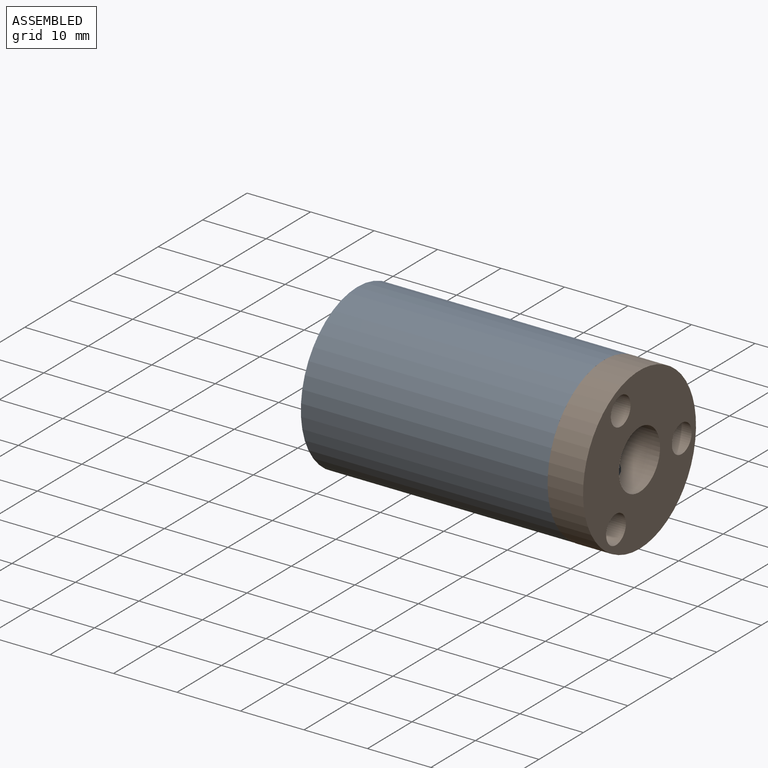
[diagram: assembled view]
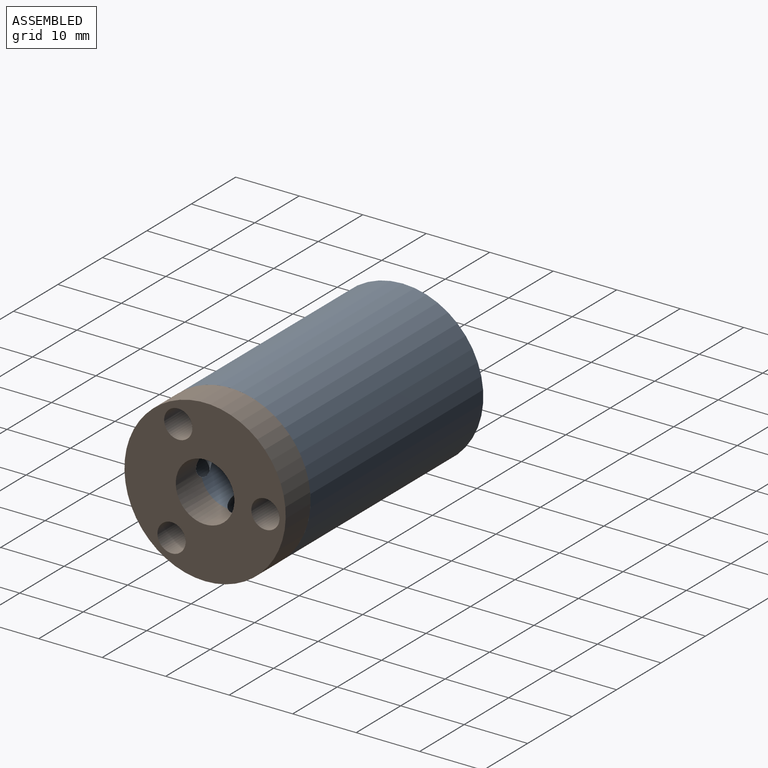
[diagram: assembled view, second angle]
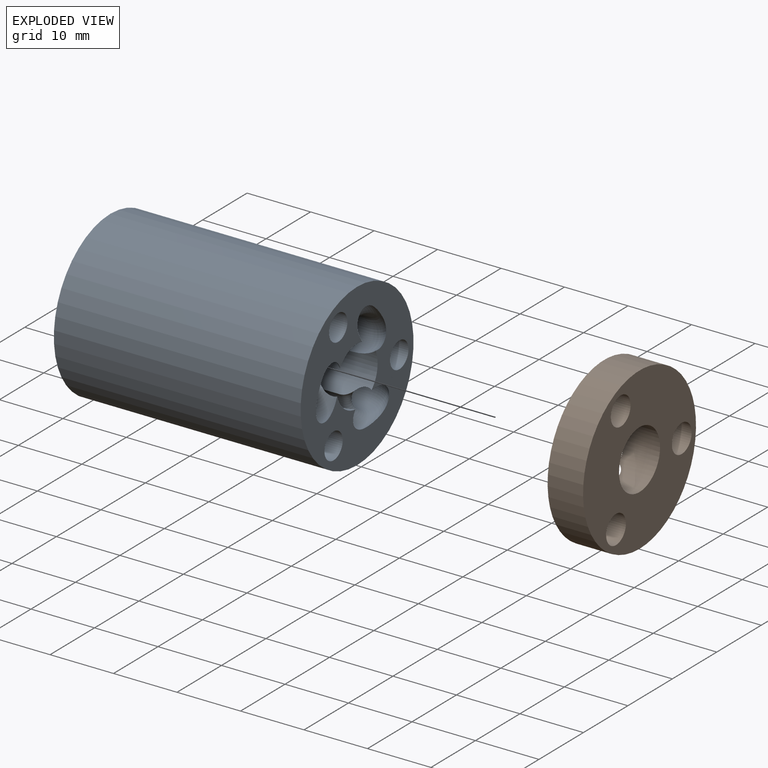
[diagram: exploded view]
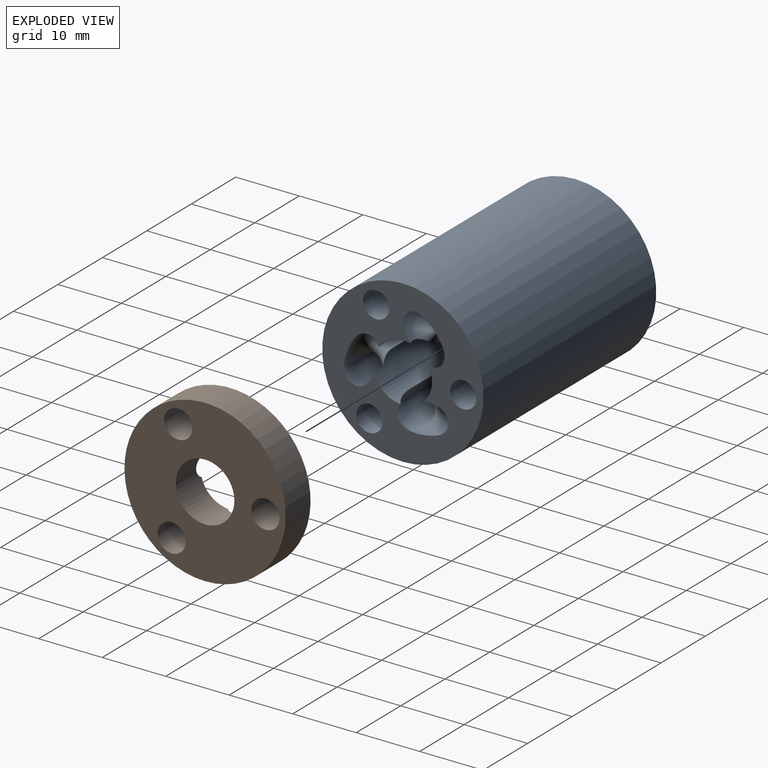
[diagram: exploded view, second angle]
ASSEMBLY  parts=2 mates=2
PART A: 26 faces, bbox 41.1x25.5x25.5 mm
  f0: cylinder r=2.06mm len=19.81mm, axis (1,0,0), area 256.1mm2, adj f15,f25
  f1: cylinder r=2.06mm len=19.81mm, axis (1,0,0), area 256.1mm2, adj f15,f24
  f2: cylinder r=2.06mm len=19.81mm, axis (1,0,0), area 256.1mm2, adj f15,f23
  f3: cylinder r=2.48mm len=25.4mm, axis (-1,0,0), area 300.1mm2, adj f5,f13,f18,f19
  f4: cylinder r=2.48mm len=25.4mm, axis (-1,0,0), area 300.1mm2, adj f5,f14,f20,f21
  f5: cylinder r=4.62mm len=38.86mm, axis (-1,0,0), area 750.4mm2, adj f3,f4,f6,f10,f12,f13,f14,f15
  f6: cylinder r=4.62mm len=3.94mm, axis (-1,0,0), area 1.6mm2, adj f5,f15,f20
  f7: cylinder r=2.48mm len=25.4mm, axis (-1,0,0), area 395.2mm2, adj f13,f19
  f8: cylinder r=2.48mm len=25.4mm, axis (-1,0,0), area 395.2mm2, adj f14,f21
  f9: cylinder r=2.48mm len=25.4mm, axis (-1,0,0), area 395.2mm2, adj f12,f16
  f10: cylinder r=2.48mm len=25.4mm, axis (-1,0,0), area 300.1mm2, adj f5,f12,f16,f17
  f11: cylinder r=12.7mm len=38.86mm, axis (-1,0,0), area 3101mm2, adj f15,f22
  f12: torus R=3.19mm, axis (0,0.14,-0.99), area 134.7mm2, adj f5,f9,f10
  f13: torus R=3.19mm, axis (0,-0.93,0.37), area 134.7mm2, adj f3,f5,f7
  f14: torus R=3.19mm, axis (0,0.79,0.62), area 134.7mm2, adj f4,f5,f8
  f15: plane 25.46x25.46mm, normal (1,0,0), area 311.2mm2, adj f0,f1,f2,f5,f6,f11,f16,f18
  f16: torus R=3.19mm, axis (0,0.14,-0.99), area 94.4mm2, adj f5,f9,f10,f15,f17
  f17: torus R=3.19mm, axis (0,0.14,-0.99), area 1.9mm2, adj f5,f10,f16
  f18: torus R=3.19mm, axis (0,-0.93,0.37), area 5mm2, adj f3,f5,f15,f19
  f19: torus R=3.19mm, axis (0,-0.93,0.37), area 91.4mm2, adj f3,f5,f7,f15,f18
  f20: torus R=3.19mm, axis (0,0.79,0.62), area 1.9mm2, adj f4,f6,f21
  f21: torus R=3.19mm, axis (0,0.79,0.62), area 94.4mm2, adj f4,f5,f8,f15,f20
  f22: plane 25.4x25.4mm, normal (-1,0,0), area 439.7mm2, adj f5,f11
  f23: plane 4.12x4.11mm, normal (1,0,0), area 13.3mm2, adj f2
  f24: plane 4.12x4.11mm, normal (1,0,0), area 13.3mm2, adj f1
  f25: plane 4.11x4.11mm, normal (1,0,0), area 13.3mm2, adj f0
PART B: 10 faces, bbox 7.3x25.4x25.4 mm
  f0: cylinder r=4.62mm len=9.24mm, axis (-1,0,0), area 153.6mm2, adj f2,f3,f4,f5,f9
  f1: cylinder r=12.7mm len=25.4mm, axis (-1,0,0), area 445.9mm2, adj f2,f9
  f2: plane 25.4x25.4mm, normal (1,0,0), area 393.2mm2, adj f0,f1,f6,f7,f8
  f3: torus R=3.19mm, axis (0,0.14,-0.99), area 38.3mm2, adj f0,f9
  f4: torus R=3.19mm, axis (0,0.79,0.62), area 38.3mm2, adj f0,f9
  f5: torus R=3.19mm, axis (0,0.93,-0.37), area 38.3mm2, adj f0,f9
  f6: cylinder r=2.22mm len=5.59mm, axis (1,0,0), area 78mm2, adj f2,f9
  f7: cylinder r=2.22mm len=5.59mm, axis (1,0,0), area 78mm2, adj f2,f9
  f8: cylinder r=2.22mm len=5.59mm, axis (1,0,0), area 78mm2, adj f2,f9
  f9: plane 25.4x25.4mm, normal (-1,0,0), area 304.6mm2, adj f0,f1,f3,f4,f5,f6,f7,f8
PLACE A t=(-7.4,-1.42,0.15)mm fixed
PLACE B rot(axis=(1,0,0),0deg) t=(-7.4,-1.42,0.15)mm
MATE cylindrical A.f1 <-> B.f6  axis (1,0,0) through (-0.67,-6.7,-7.78)mm
MATE cylindrical A.f2 <-> B.f7  axis (1,0,0) through (-0.67,-5.64,8.69)mm
